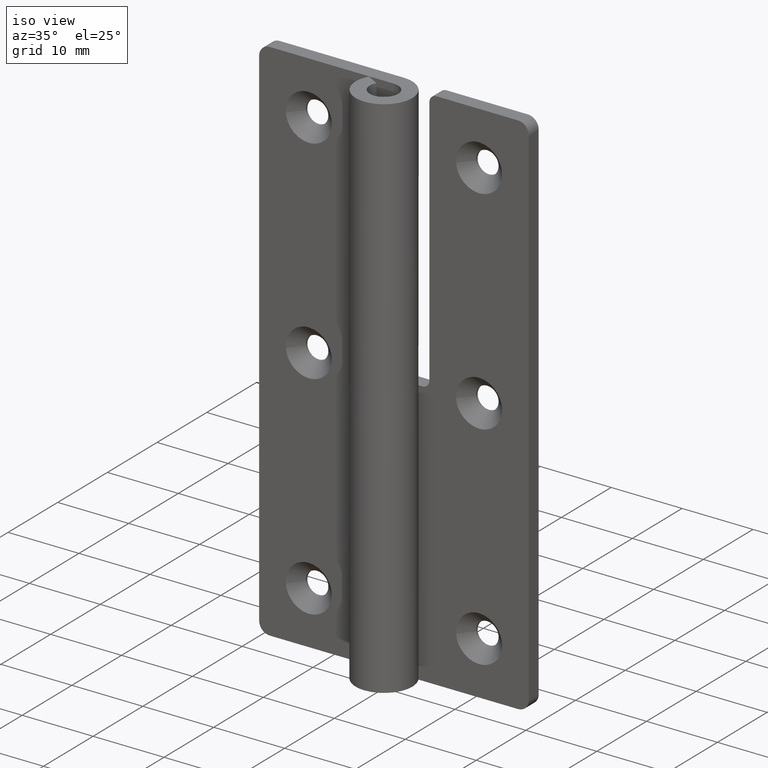
[diagram: clean part render]
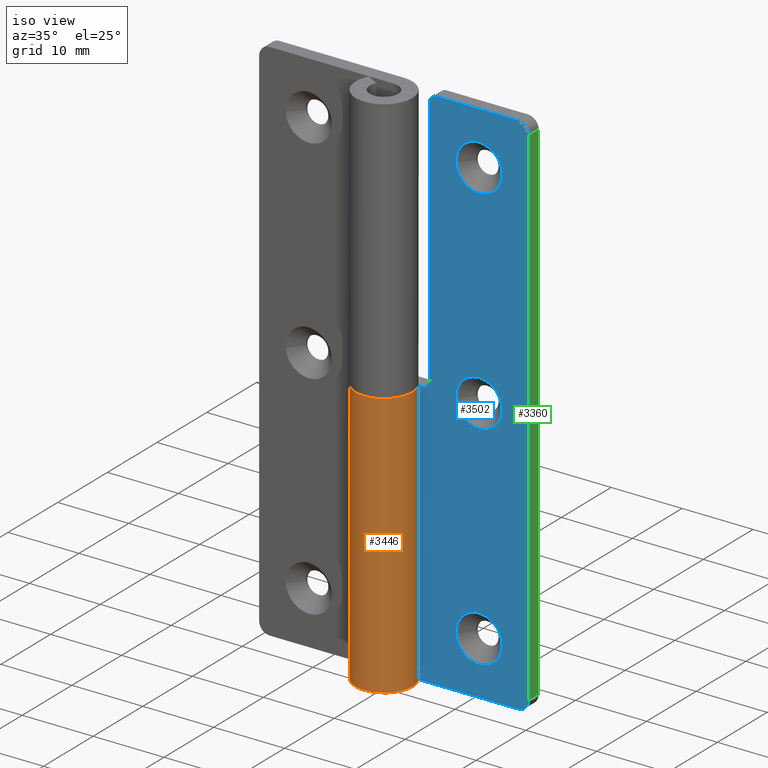
[diagram: same view with three faces highlighted in distinct colors, each labeled with its STEP entity id]
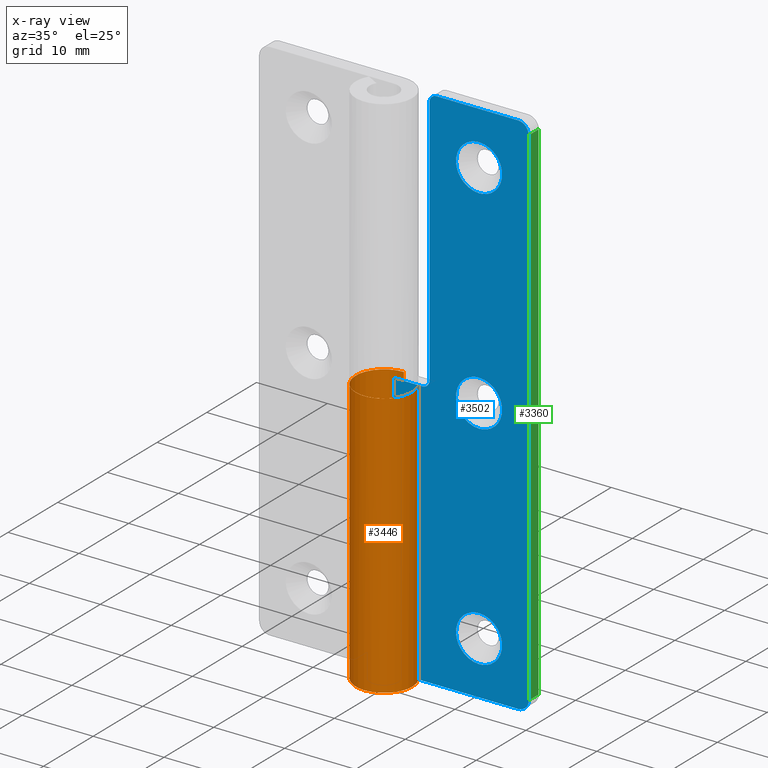
[diagram: x-ray of the same camera — body ghosted, the three highlighted faces saturated]
A machine part, iso view with three faces highlighted in distinct colors.
The next image is the same camera in x-ray (body ghosted, the three faces saturated) — at least one of them is partly hidden behind the body in this view.
Their STEP definitions:

[orange] entity #3446 — the highlighted face is a freeform B-spline surface patch.
#3031=CARTESIAN_POINT('',(0.0,4.0,37.500000000000000));
#3032=VERTEX_POINT('',#3031);
#3033=CARTESIAN_POINT('',(3.492491947020065,1.950000000000000,37.500000000000000));
#3034=VERTEX_POINT('',#3033);
#3035=CARTESIAN_POINT('',(0.0,4.0,37.500000000000000));
#3036=CARTESIAN_POINT('',(-3.057904543451451,4.000000000000001,37.500000000000000));
#3037=CARTESIAN_POINT('',(-3.859957943328416,1.049154266891131,37.500000000000000));
#3038=CARTESIAN_POINT('',(-4.662011343205381,-1.901691466217739,37.500000000000000));
#3039=CARTESIAN_POINT('',(-2.024845673131660,-3.449637662132068,37.500000000000000));
#3040=CARTESIAN_POINT('',(0.612319996942062,-4.997583858046397,37.500000000000000));
#3041=CARTESIAN_POINT('',(2.797770204447354,-2.858755303118232,37.500000000000000));
#3042=CARTESIAN_POINT('',(4.983220411952645,-0.719926748190068,37.500000000000000));
#3043=CARTESIAN_POINT('',(3.492491947020066,1.949999999999997,37.500000000000000));
#3051=(BOUNDED_CURVE()B_SPLINE_CURVE(2,(#3035,#3036,#3037,#3038,#3039,#3040,#3041,#3042,#3043),.UNSPECIFIED.,.F.,.U.)B_SPLINE_CURVE_WITH_KNOTS((3,2,2,2,3),(0.0,0.250000000000000,0.500000000000000,0.750000000000000,1.0),.UNSPECIFIED.)CURVE()GEOMETRIC_REPRESENTATION_ITEM()RATIONAL_B_SPLINE_CURVE((1.0,0.794445897063728,1.0,0.794445897063728,1.0,0.794445897063728,1.0,0.794445897063728,1.0))REPRESENTATION_ITEM(''));
#3052=EDGE_CURVE('',#3032,#3034,#3051,.T.);
#3305=CARTESIAN_POINT('',(3.492491947020065,1.950000000000000,0.0));
#3306=VERTEX_POINT('',#3305);
#3312=CARTESIAN_POINT('',(0.0,4.0,0.0));
#3313=VERTEX_POINT('',#3312);
#3314=CARTESIAN_POINT('',(3.492491947020065,1.949999999999999,0.0));
#3315=CARTESIAN_POINT('',(4.983220411952646,-0.719926748190065,0.0));
#3316=CARTESIAN_POINT('',(2.797770204447355,-2.858755303118231,0.0));
#3317=CARTESIAN_POINT('',(0.612319996942063,-4.997583858046395,0.0));
#3318=CARTESIAN_POINT('',(-2.024845673131658,-3.449637662132068,0.0));
#3319=CARTESIAN_POINT('',(-4.662011343205381,-1.901691466217742,0.0));
#3320=CARTESIAN_POINT('',(-3.859957943328416,1.049154266891129,0.0));
#3321=CARTESIAN_POINT('',(-3.057904543451453,4.0,0.0));
#3322=CARTESIAN_POINT('',(0.0,4.0,0.0));
#3330=(BOUNDED_CURVE()B_SPLINE_CURVE(2,(#3314,#3315,#3316,#3317,#3318,#3319,#3320,#3321,#3322),.UNSPECIFIED.,.F.,.U.)B_SPLINE_CURVE_WITH_KNOTS((3,2,2,2,3),(0.0,0.250000000000000,0.500000000000000,0.750000000000000,1.0),.UNSPECIFIED.)CURVE()GEOMETRIC_REPRESENTATION_ITEM()RATIONAL_B_SPLINE_CURVE((1.0,0.794445897063728,1.0,0.794445897063728,1.0,0.794445897063728,1.0,0.794445897063728,1.0))REPRESENTATION_ITEM(''));
#3331=EDGE_CURVE('',#3306,#3313,#3330,.T.);
#3367=CARTESIAN_POINT('',(3.492491947020065,1.950000000000000,0.0));
#3368=CARTESIAN_POINT('',(3.492491947020065,1.950000000000000,37.500000000000000));
#3369=QUASI_UNIFORM_CURVE('',1,(#3367,#3368),.UNSPECIFIED.,.F.,.U.);
#3370=EDGE_CURVE('',#3306,#3034,#3369,.T.);
#3414=CARTESIAN_POINT('',(3.410560657416367,2.089994258863795,-0.937500000000001));
#3415=CARTESIAN_POINT('',(3.410560657416367,2.089994258863795,38.460937500000007));
#3416=CARTESIAN_POINT('',(5.991488624861849,-2.121697399169993,-0.937500000000002));
#3417=CARTESIAN_POINT('',(5.991488624861849,-2.121697399169993,38.460937500000000));
#3418=CARTESIAN_POINT('',(1.335227436935084,-3.770565964368712,-0.937500000000001));
#3419=CARTESIAN_POINT('',(1.335227436935084,-3.770565964368712,38.460937500000007));
#3420=CARTESIAN_POINT('',(-3.321033750991682,-5.419434529567431,-0.937500000000002));
#3421=CARTESIAN_POINT('',(-3.321033750991682,-5.419434529567431,38.460937500000000));
#3422=CARTESIAN_POINT('',(-3.965779445495240,-0.522104768880208,-0.937500000000001));
#3423=CARTESIAN_POINT('',(-3.965779445495240,-0.522104768880208,38.460937500000007));
#3424=CARTESIAN_POINT('',(-4.610525139998799,4.375224991807015,-0.937500000000002));
#3425=CARTESIAN_POINT('',(-4.610525139998799,4.375224991807015,38.460937500000000));
#3426=CARTESIAN_POINT('',(0.313836382911377,3.987669334932510,-0.937500000000001));
#3427=CARTESIAN_POINT('',(0.313836382911377,3.987669334932510,38.460937500000007));
#3435=(BOUNDED_SURFACE()B_SPLINE_SURFACE(1,2,((#3414,#3416,#3418,#3420,#3422,#3424,#3426),(#3415,#3417,#3419,#3421,#3423,#3425,#3427)),.UNSPECIFIED.,.F.,.F.,.U.)B_SPLINE_SURFACE_WITH_KNOTS((2,2),(3,2,2,3),(0.0,39.398437500000007),(0.0,7.631608523170559,15.263217046341120,22.894825569511681),.UNSPECIFIED.)GEOMETRIC_REPRESENTATION_ITEM()RATIONAL_B_SPLINE_SURFACE(((1.0,0.629320391049838,1.0,0.629320391049838,1.0,0.629320391049838,1.0),(1.0,0.629320391049838,1.0,0.629320391049838,1.0,0.629320391049838,1.0)))REPRESENTATION_ITEM('')SURFACE());
#3436=ORIENTED_EDGE('',*,*,#3052,.F.);
#3437=CARTESIAN_POINT('',(0.0,4.0,0.0));
#3438=CARTESIAN_POINT('',(0.0,4.0,37.500000000000000));
#3439=QUASI_UNIFORM_CURVE('',1,(#3437,#3438),.UNSPECIFIED.,.F.,.U.);
#3440=EDGE_CURVE('',#3313,#3032,#3439,.T.);
#3441=ORIENTED_EDGE('',*,*,#3440,.F.);
#3442=ORIENTED_EDGE('',*,*,#3331,.F.);
#3443=ORIENTED_EDGE('',*,*,#3370,.T.);
#3444=EDGE_LOOP('',(#3436,#3441,#3442,#3443));
#3445=FACE_OUTER_BOUND('',#3444,.T.);
#3446=ADVANCED_FACE('',(#3445),#3435,.T.);

[blue] entity #3502 — the highlighted face is a freeform B-spline surface patch.
#2165=CARTESIAN_POINT('',(15.239981334655660,1.999999999941699,67.754992061566440));
#2166=VERTEX_POINT('',#2165);
#2172=CARTESIAN_POINT('',(12.0,2.0,70.750000000000014));
#2173=VERTEX_POINT('',#2172);
#2174=CARTESIAN_POINT('',(12.0,2.0,70.750000000000014));
#2175=CARTESIAN_POINT('',(15.004269097058854,2.000000000000000,70.750000000000028));
#2176=CARTESIAN_POINT('',(15.239981334655658,1.999999999941699,67.754992061566440));
#2184=(BOUNDED_CURVE()B_SPLINE_CURVE(2,(#2174,#2175,#2176),.UNSPECIFIED.,.F.,.U.)B_SPLINE_CURVE_WITH_KNOTS((3,3),(0.0,0.236331300585534),.UNSPECIFIED.)CURVE()GEOMETRIC_REPRESENTATION_ITEM()RATIONAL_B_SPLINE_CURVE((1.0,0.723120658660533,0.969723356073245))REPRESENTATION_ITEM(''));
#2185=EDGE_CURVE('',#2173,#2166,#2184,.T.);
#2187=CARTESIAN_POINT('',(8.760018665344340,1.999999999941699,67.245007938433574));
#2188=VERTEX_POINT('',#2187);
#2189=CARTESIAN_POINT('',(8.760018665344340,1.999999999941699,67.245007938433574));
#2190=CARTESIAN_POINT('',(8.750000000000000,2.000000000000000,67.372307151776639));
#2191=CARTESIAN_POINT('',(8.750000000000000,2.0,67.500000000000000));
#2192=CARTESIAN_POINT('',(8.750000000000000,2.0,70.750000000000014));
#2193=CARTESIAN_POINT('',(12.0,2.0,70.750000000000014));
#2201=(BOUNDED_CURVE()B_SPLINE_CURVE(2,(#2189,#2190,#2191,#2192,#2193),.UNSPECIFIED.,.F.,.U.)B_SPLINE_CURVE_WITH_KNOTS((3,2,3),(0.736331300585535,0.750000000000000,1.0),.UNSPECIFIED.)CURVE()GEOMETRIC_REPRESENTATION_ITEM()RATIONAL_B_SPLINE_CURVE((0.969723356073246,0.983986122526015,1.0,0.707106781186547,1.0))REPRESENTATION_ITEM(''));
#2202=EDGE_CURVE('',#2188,#2173,#2201,.T.);
#2239=CARTESIAN_POINT('',(12.0,2.0,64.250000000000000));
#2240=VERTEX_POINT('',#2239);
#2241=CARTESIAN_POINT('',(12.0,2.0,64.250000000000000));
#2242=CARTESIAN_POINT('',(8.995730902941142,2.000000000000000,64.250000000000000));
#2243=CARTESIAN_POINT('',(8.760018665344340,1.999999999941700,67.245007938433574));
#2251=(BOUNDED_CURVE()B_SPLINE_CURVE(2,(#2241,#2242,#2243),.UNSPECIFIED.,.F.,.U.)B_SPLINE_CURVE_WITH_KNOTS((3,3),(0.500000000000000,0.736331300585535),.UNSPECIFIED.)CURVE()GEOMETRIC_REPRESENTATION_ITEM()RATIONAL_B_SPLINE_CURVE((1.0,0.723120658660532,0.969723356073246))REPRESENTATION_ITEM(''));
#2252=EDGE_CURVE('',#2240,#2188,#2251,.T.);
#2254=CARTESIAN_POINT('',(15.239981334655660,1.999999999941700,67.754992061566440));
#2255=CARTESIAN_POINT('',(15.250000000000004,2.000000000000000,67.627692848223347));
#2256=CARTESIAN_POINT('',(15.250000000000000,2.0,67.500000000000000));
#2257=CARTESIAN_POINT('',(15.250000000000002,2.0,64.250000000000014));
#2258=CARTESIAN_POINT('',(12.0,2.0,64.250000000000000));
#2266=(BOUNDED_CURVE()B_SPLINE_CURVE(2,(#2254,#2255,#2256,#2257,#2258),.UNSPECIFIED.,.F.,.U.)B_SPLINE_CURVE_WITH_KNOTS((3,2,3),(0.236331300585534,0.250000000000000,0.500000000000000),.UNSPECIFIED.)CURVE()GEOMETRIC_REPRESENTATION_ITEM()RATIONAL_B_SPLINE_CURVE((0.969723356073245,0.983986122526014,1.0,0.707106781186547,1.0))REPRESENTATION_ITEM(''));
#2267=EDGE_CURVE('',#2166,#2240,#2266,.T.);
#2497=CARTESIAN_POINT('',(15.239981334655660,1.999999999941699,37.754992061566433));
#2498=VERTEX_POINT('',#2497);
#2504=CARTESIAN_POINT('',(12.0,2.0,40.750000000000000));
#2505=VERTEX_POINT('',#2504);
#2506=CARTESIAN_POINT('',(12.0,2.0,40.750000000000000));
#2507=CARTESIAN_POINT('',(15.004269097058856,2.0,40.750000000000000));
#2508=CARTESIAN_POINT('',(15.239981334655656,1.999999999941699,37.754992061566426));
#2516=(BOUNDED_CURVE()B_SPLINE_CURVE(2,(#2506,#2507,#2508),.UNSPECIFIED.,.F.,.U.)B_SPLINE_CURVE_WITH_KNOTS((3,3),(0.0,0.236331300585534),.UNSPECIFIED.)CURVE()GEOMETRIC_REPRESENTATION_ITEM()RATIONAL_B_SPLINE_CURVE((1.0,0.723120658660533,0.969723356073245))REPRESENTATION_ITEM(''));
#2517=EDGE_CURVE('',#2505,#2498,#2516,.T.);
#2519=CARTESIAN_POINT('',(8.760018665344340,1.999999999941700,37.245007938433567));
#2520=VERTEX_POINT('',#2519);
#2521=CARTESIAN_POINT('',(8.760018665344340,1.999999999941699,37.245007938433581));
#2522=CARTESIAN_POINT('',(8.750000000000002,2.000000000000000,37.372307151776646));
#2523=CARTESIAN_POINT('',(8.750000000000000,2.0,37.500000000000000));
#2524=CARTESIAN_POINT('',(8.750000000000000,2.0,40.750000000000000));
#2525=CARTESIAN_POINT('',(12.0,2.0,40.750000000000000));
#2533=(BOUNDED_CURVE()B_SPLINE_CURVE(2,(#2521,#2522,#2523,#2524,#2525),.UNSPECIFIED.,.F.,.U.)B_SPLINE_CURVE_WITH_KNOTS((3,2,3),(0.736331300585534,0.750000000000000,1.0),.UNSPECIFIED.)CURVE()GEOMETRIC_REPRESENTATION_ITEM()RATIONAL_B_SPLINE_CURVE((0.969723356073244,0.983986122526014,1.0,0.707106781186547,1.0))REPRESENTATION_ITEM(''));
#2534=EDGE_CURVE('',#2520,#2505,#2533,.T.);
#2571=CARTESIAN_POINT('',(12.0,2.0,34.249999999999993));
#2572=VERTEX_POINT('',#2571);
#2573=CARTESIAN_POINT('',(12.0,2.0,34.249999999999993));
#2574=CARTESIAN_POINT('',(8.995730902941142,2.000000000000000,34.249999999999993));
#2575=CARTESIAN_POINT('',(8.760018665344340,1.999999999941700,37.245007938433581));
#2583=(BOUNDED_CURVE()B_SPLINE_CURVE(2,(#2573,#2574,#2575),.UNSPECIFIED.,.F.,.U.)B_SPLINE_CURVE_WITH_KNOTS((3,3),(0.500000000000000,0.736331300585535),.UNSPECIFIED.)CURVE()GEOMETRIC_REPRESENTATION_ITEM()RATIONAL_B_SPLINE_CURVE((1.0,0.723120658660532,0.969723356073246))REPRESENTATION_ITEM(''));
#2584=EDGE_CURVE('',#2572,#2520,#2583,.T.);
#2586=CARTESIAN_POINT('',(15.239981334655656,1.999999999941699,37.754992061566426));
#2587=CARTESIAN_POINT('',(15.250000000000000,2.0,37.627692848223361));
#2588=CARTESIAN_POINT('',(15.250000000000000,2.0,37.500000000000000));
#2589=CARTESIAN_POINT('',(15.250000000000002,2.0,34.250000000000000));
#2590=CARTESIAN_POINT('',(12.0,2.0,34.249999999999993));
#2598=(BOUNDED_CURVE()B_SPLINE_CURVE(2,(#2586,#2587,#2588,#2589,#2590),.UNSPECIFIED.,.F.,.U.)B_SPLINE_CURVE_WITH_KNOTS((3,2,3),(0.236331300585534,0.250000000000000,0.500000000000000),.UNSPECIFIED.)CURVE()GEOMETRIC_REPRESENTATION_ITEM()RATIONAL_B_SPLINE_CURVE((0.969723356073245,0.983986122526014,1.0,0.707106781186547,1.0))REPRESENTATION_ITEM(''));
#2599=EDGE_CURVE('',#2498,#2572,#2598,.T.);
#2829=CARTESIAN_POINT('',(15.239981334655660,1.999999999941699,7.754992061566426));
#2830=VERTEX_POINT('',#2829);
#2836=CARTESIAN_POINT('',(12.0,2.0,10.750000000000000));
#2837=VERTEX_POINT('',#2836);
#2838=CARTESIAN_POINT('',(12.0,2.0,10.750000000000000));
#2839=CARTESIAN_POINT('',(15.004269097058856,2.0,10.750000000000000));
#2840=CARTESIAN_POINT('',(15.239981334655656,1.999999999941699,7.754992061566426));
#2848=(BOUNDED_CURVE()B_SPLINE_CURVE(2,(#2838,#2839,#2840),.UNSPECIFIED.,.F.,.U.)B_SPLINE_CURVE_WITH_KNOTS((3,3),(0.0,0.236331300585534),.UNSPECIFIED.)CURVE()GEOMETRIC_REPRESENTATION_ITEM()RATIONAL_B_SPLINE_CURVE((1.0,0.723120658660533,0.969723356073245))REPRESENTATION_ITEM(''));
#2849=EDGE_CURVE('',#2837,#2830,#2848,.T.);
#2851=CARTESIAN_POINT('',(8.760018665344340,1.999999999941699,7.245007938433573));
#2852=VERTEX_POINT('',#2851);
#2853=CARTESIAN_POINT('',(8.760018665344340,1.999999999941700,7.245007938433573));
#2854=CARTESIAN_POINT('',(8.750000000000002,2.000000000000000,7.372307151776647));
#2855=CARTESIAN_POINT('',(8.750000000000000,2.0,7.500000000000000));
#2856=CARTESIAN_POINT('',(8.750000000000000,2.0,10.750000000000000));
#2857=CARTESIAN_POINT('',(12.0,2.0,10.750000000000000));
#2865=(BOUNDED_CURVE()B_SPLINE_CURVE(2,(#2853,#2854,#2855,#2856,#2857),.UNSPECIFIED.,.F.,.U.)B_SPLINE_CURVE_WITH_KNOTS((3,2,3),(0.736331300585534,0.750000000000000,1.0),.UNSPECIFIED.)CURVE()GEOMETRIC_REPRESENTATION_ITEM()RATIONAL_B_SPLINE_CURVE((0.969723356073245,0.983986122526014,1.0,0.707106781186547,1.0))REPRESENTATION_ITEM(''));
#2866=EDGE_CURVE('',#2852,#2837,#2865,.T.);
#2903=CARTESIAN_POINT('',(12.0,2.0,4.250000000000000));
#2904=VERTEX_POINT('',#2903);
#2905=CARTESIAN_POINT('',(12.0,2.0,4.250000000000000));
#2906=CARTESIAN_POINT('',(8.995730902941142,2.000000000000000,4.249999999999999));
#2907=CARTESIAN_POINT('',(8.760018665344340,1.999999999941700,7.245007938433573));
#2915=(BOUNDED_CURVE()B_SPLINE_CURVE(2,(#2905,#2906,#2907),.UNSPECIFIED.,.F.,.U.)B_SPLINE_CURVE_WITH_KNOTS((3,3),(0.500000000000000,0.736331300585535),.UNSPECIFIED.)CURVE()GEOMETRIC_REPRESENTATION_ITEM()RATIONAL_B_SPLINE_CURVE((1.0,0.723120658660532,0.969723356073246))REPRESENTATION_ITEM(''));
#2916=EDGE_CURVE('',#2904,#2852,#2915,.T.);
#2918=CARTESIAN_POINT('',(15.239981334655656,1.999999999941699,7.754992061566426));
#2919=CARTESIAN_POINT('',(15.250000000000000,2.0,7.627692848223353));
#2920=CARTESIAN_POINT('',(15.250000000000000,2.0,7.500000000000000));
#2921=CARTESIAN_POINT('',(15.250000000000002,2.0,4.250000000000000));
#2922=CARTESIAN_POINT('',(12.0,2.0,4.250000000000000));
#2930=(BOUNDED_CURVE()B_SPLINE_CURVE(2,(#2918,#2919,#2920,#2921,#2922),.UNSPECIFIED.,.F.,.U.)B_SPLINE_CURVE_WITH_KNOTS((3,2,3),(0.236331300585534,0.250000000000000,0.500000000000000),.UNSPECIFIED.)CURVE()GEOMETRIC_REPRESENTATION_ITEM()RATIONAL_B_SPLINE_CURVE((0.969723356073245,0.983986122526014,1.0,0.707106781186547,1.0))REPRESENTATION_ITEM(''));
#2931=EDGE_CURVE('',#2830,#2904,#2930,.T.);
#2951=CARTESIAN_POINT('',(6.0,2.0,75.0));
#2952=VERTEX_POINT('',#2951);
#2953=CARTESIAN_POINT('',(5.0,2.0,74.0));
#2954=VERTEX_POINT('',#2953);
#2955=CARTESIAN_POINT('',(6.0,2.0,75.0));
#2956=CARTESIAN_POINT('',(5.000000000000001,2.000000000000000,75.000000000000014));
#2957=CARTESIAN_POINT('',(5.0,2.0,74.0));
#2965=(BOUNDED_CURVE()B_SPLINE_CURVE(2,(#2955,#2956,#2957),.UNSPECIFIED.,.F.,.U.)CURVE()GEOMETRIC_REPRESENTATION_ITEM()QUASI_UNIFORM_CURVE()RATIONAL_B_SPLINE_CURVE((1.0,0.707106781186548,1.0))REPRESENTATION_ITEM(''));
#2966=EDGE_CURVE('',#2952,#2954,#2965,.T.);
#3011=CARTESIAN_POINT('',(5.0,2.0,38.500000000000000));
#3012=VERTEX_POINT('',#3011);
#3018=CARTESIAN_POINT('',(5.0,2.0,38.500000000000000));
#3019=CARTESIAN_POINT('',(5.0,2.0,74.0));
#3020=QUASI_UNIFORM_CURVE('',1,(#3018,#3019),.UNSPECIFIED.,.F.,.U.);
#3021=EDGE_CURVE('',#3012,#2954,#3020,.T.);
#3061=CARTESIAN_POINT('',(0.0,2.0,37.500000000000000));
#3062=VERTEX_POINT('',#3061);
#3082=CARTESIAN_POINT('',(4.0,2.0,37.500000000000000));
#3083=VERTEX_POINT('',#3082);
#3084=CARTESIAN_POINT('',(0.0,2.0,37.500000000000000));
#3085=CARTESIAN_POINT('',(4.0,2.0,37.500000000000000));
#3086=QUASI_UNIFORM_CURVE('',1,(#3084,#3085),.UNSPECIFIED.,.F.,.U.);
#3087=EDGE_CURVE('',#3062,#3083,#3086,.T.);
#3133=CARTESIAN_POINT('',(5.0,2.0,38.500000000000000));
#3134=CARTESIAN_POINT('',(5.000000000000001,2.000000000000000,37.499999999999993));
#3135=CARTESIAN_POINT('',(4.0,2.0,37.500000000000000));
#3143=(BOUNDED_CURVE()B_SPLINE_CURVE(2,(#3133,#3134,#3135),.UNSPECIFIED.,.F.,.U.)CURVE()GEOMETRIC_REPRESENTATION_ITEM()QUASI_UNIFORM_CURVE()RATIONAL_B_SPLINE_CURVE((1.0,0.707106781186548,1.0))REPRESENTATION_ITEM(''));
#3144=EDGE_CURVE('',#3012,#3083,#3143,.T.);
#3163=CARTESIAN_POINT('',(19.0,2.0,73.500000000000000));
#3164=VERTEX_POINT('',#3163);
#3165=CARTESIAN_POINT('',(17.500000000000000,2.0,75.0));
#3166=VERTEX_POINT('',#3165);
#3167=CARTESIAN_POINT('',(19.0,2.0,73.500000000000000));
#3168=CARTESIAN_POINT('',(19.000000000000011,2.000000000000000,75.000000000000014));
#3169=CARTESIAN_POINT('',(17.500000000000000,2.0,75.0));
#3177=(BOUNDED_CURVE()B_SPLINE_CURVE(2,(#3167,#3168,#3169),.UNSPECIFIED.,.F.,.U.)CURVE()GEOMETRIC_REPRESENTATION_ITEM()QUASI_UNIFORM_CURVE()RATIONAL_B_SPLINE_CURVE((1.0,0.707106781186548,1.0))REPRESENTATION_ITEM(''));
#3178=EDGE_CURVE('',#3164,#3166,#3177,.T.);
#3224=CARTESIAN_POINT('',(17.500000000000000,2.0,0.0));
#3225=VERTEX_POINT('',#3224);
#3226=CARTESIAN_POINT('',(19.0,2.0,1.500000000000100));
#3227=VERTEX_POINT('',#3226);
#3228=CARTESIAN_POINT('',(17.500000000000000,2.0,0.0));
#3229=CARTESIAN_POINT('',(19.000000000000011,2.000000000000000,9.996344E-014));
#3230=CARTESIAN_POINT('',(19.0,2.0,1.500000000000100));
#3238=(BOUNDED_CURVE()B_SPLINE_CURVE(2,(#3228,#3229,#3230),.UNSPECIFIED.,.F.,.U.)CURVE()GEOMETRIC_REPRESENTATION_ITEM()QUASI_UNIFORM_CURVE()RATIONAL_B_SPLINE_CURVE((1.0,0.707106781186548,1.0))REPRESENTATION_ITEM(''));
#3239=EDGE_CURVE('',#3225,#3227,#3238,.T.);
#3277=CARTESIAN_POINT('',(0.0,2.0,0.0));
#3278=VERTEX_POINT('',#3277);
#3279=CARTESIAN_POINT('',(17.500000000000000,2.0,0.0));
#3280=CARTESIAN_POINT('',(0.0,2.0,0.0));
#3281=QUASI_UNIFORM_CURVE('',1,(#3279,#3280),.UNSPECIFIED.,.F.,.U.);
#3282=EDGE_CURVE('',#3225,#3278,#3281,.T.);
#3352=CARTESIAN_POINT('',(19.0,2.0,1.500000000000100));
#3353=CARTESIAN_POINT('',(19.0,2.0,73.500000000000000));
#3354=QUASI_UNIFORM_CURVE('',1,(#3352,#3353),.UNSPECIFIED.,.F.,.U.);
#3355=EDGE_CURVE('',#3227,#3164,#3354,.T.);
#3403=CARTESIAN_POINT('',(0.0,2.0,0.0));
#3404=CARTESIAN_POINT('',(0.0,2.0,37.500000000000000));
#3405=QUASI_UNIFORM_CURVE('',1,(#3403,#3404),.UNSPECIFIED.,.F.,.U.);
#3406=EDGE_CURVE('',#3278,#3062,#3405,.T.);
#3453=CARTESIAN_POINT('',(17.500000000000000,2.0,75.0));
#3454=CARTESIAN_POINT('',(6.0,2.0,75.0));
#3455=QUASI_UNIFORM_CURVE('',1,(#3453,#3454),.UNSPECIFIED.,.F.,.U.);
#3456=EDGE_CURVE('',#3166,#2952,#3455,.T.);
#3467=CARTESIAN_POINT('',(-0.949049963174314,2.0,-3.746249854635448));
#3468=CARTESIAN_POINT('',(-0.949049963174314,2.0,78.746251866292212));
#3469=CARTESIAN_POINT('',(19.949050472794021,2.0,-3.746249854635448));
#3470=CARTESIAN_POINT('',(19.949050472794021,2.0,78.746251866292212));
#3471=B_SPLINE_SURFACE_WITH_KNOTS('',1,1,((#3467,#3469),(#3468,#3470)),.UNSPECIFIED.,.F.,.F.,.U.,(2,2),(2,2),(0.0,82.492501720927663),(0.0,20.898100435968342),.UNSPECIFIED.);
#3472=ORIENTED_EDGE('',*,*,#2966,.T.);
#3473=ORIENTED_EDGE('',*,*,#3021,.F.);
#3474=ORIENTED_EDGE('',*,*,#3144,.T.);
#3475=ORIENTED_EDGE('',*,*,#3087,.F.);
#3476=ORIENTED_EDGE('',*,*,#3406,.F.);
#3477=ORIENTED_EDGE('',*,*,#3282,.F.);
#3478=ORIENTED_EDGE('',*,*,#3239,.T.);
#3479=ORIENTED_EDGE('',*,*,#3355,.T.);
#3480=ORIENTED_EDGE('',*,*,#3178,.T.);
#3481=ORIENTED_EDGE('',*,*,#3456,.T.);
#3482=EDGE_LOOP('',(#3472,#3473,#3474,#3475,#3476,#3477,#3478,#3479,#3480,#3481));
#3483=FACE_OUTER_BOUND('',#3482,.T.);
#3484=ORIENTED_EDGE('',*,*,#2916,.T.);
#3485=ORIENTED_EDGE('',*,*,#2866,.T.);
#3486=ORIENTED_EDGE('',*,*,#2849,.T.);
#3487=ORIENTED_EDGE('',*,*,#2931,.T.);
#3488=EDGE_LOOP('',(#3484,#3485,#3486,#3487));
#3489=FACE_BOUND('',#3488,.T.);
#3490=ORIENTED_EDGE('',*,*,#2584,.T.);
#3491=ORIENTED_EDGE('',*,*,#2534,.T.);
#3492=ORIENTED_EDGE('',*,*,#2517,.T.);
#3493=ORIENTED_EDGE('',*,*,#2599,.T.);
#3494=EDGE_LOOP('',(#3490,#3491,#3492,#3493));
#3495=FACE_BOUND('',#3494,.T.);
#3496=ORIENTED_EDGE('',*,*,#2252,.T.);
#3497=ORIENTED_EDGE('',*,*,#2202,.T.);
#3498=ORIENTED_EDGE('',*,*,#2185,.T.);
#3499=ORIENTED_EDGE('',*,*,#2267,.T.);
#3500=EDGE_LOOP('',(#3496,#3497,#3498,#3499));
#3501=FACE_BOUND('',#3500,.T.);
#3502=ADVANCED_FACE('',(#3483,#3489,#3495,#3501),#3471,.F.);

[green] entity #3360 — the highlighted face is a freeform B-spline surface patch.
#3163=CARTESIAN_POINT('',(19.0,2.0,73.500000000000000));
#3164=VERTEX_POINT('',#3163);
#3180=CARTESIAN_POINT('',(19.0,4.0,73.500000000000000));
#3181=VERTEX_POINT('',#3180);
#3182=CARTESIAN_POINT('',(19.0,4.0,73.500000000000000));
#3183=CARTESIAN_POINT('',(19.0,2.0,73.500000000000000));
#3184=QUASI_UNIFORM_CURVE('',1,(#3182,#3183),.UNSPECIFIED.,.F.,.U.);
#3185=EDGE_CURVE('',#3181,#3164,#3184,.T.);
#3226=CARTESIAN_POINT('',(19.0,2.0,1.500000000000100));
#3227=VERTEX_POINT('',#3226);
#3248=CARTESIAN_POINT('',(19.0,4.0,1.500000000000100));
#3249=VERTEX_POINT('',#3248);
#3263=CARTESIAN_POINT('',(19.0,4.0,1.500000000000100));
#3264=CARTESIAN_POINT('',(19.0,2.0,1.500000000000100));
#3265=QUASI_UNIFORM_CURVE('',1,(#3263,#3264),.UNSPECIFIED.,.F.,.U.);
#3266=EDGE_CURVE('',#3249,#3227,#3265,.T.);
#3341=CARTESIAN_POINT('',(19.0,1.900100003876388,-2.096399860449925));
#3342=CARTESIAN_POINT('',(19.0,1.900100003876388,77.096401791640503));
#3343=CARTESIAN_POINT('',(19.0,4.099900049767792,-2.096399860449925));
#3344=CARTESIAN_POINT('',(19.0,4.099900049767792,77.096401791640503));
#3345=B_SPLINE_SURFACE_WITH_KNOTS('',1,1,((#3341,#3343),(#3342,#3344)),.UNSPECIFIED.,.F.,.F.,.U.,(2,2),(2,2),(0.0,79.192801652090424),(0.0,2.199800045891403),.UNSPECIFIED.);
#3346=CARTESIAN_POINT('',(19.0,4.0,1.500000000000100));
#3347=CARTESIAN_POINT('',(19.0,4.0,73.500000000000000));
#3348=QUASI_UNIFORM_CURVE('',1,(#3346,#3347),.UNSPECIFIED.,.F.,.U.);
#3349=EDGE_CURVE('',#3249,#3181,#3348,.T.);
#3350=ORIENTED_EDGE('',*,*,#3349,.T.);
#3351=ORIENTED_EDGE('',*,*,#3185,.T.);
#3352=CARTESIAN_POINT('',(19.0,2.0,1.500000000000100));
#3353=CARTESIAN_POINT('',(19.0,2.0,73.500000000000000));
#3354=QUASI_UNIFORM_CURVE('',1,(#3352,#3353),.UNSPECIFIED.,.F.,.U.);
#3355=EDGE_CURVE('',#3227,#3164,#3354,.T.);
#3356=ORIENTED_EDGE('',*,*,#3355,.F.);
#3357=ORIENTED_EDGE('',*,*,#3266,.F.);
#3358=EDGE_LOOP('',(#3350,#3351,#3356,#3357));
#3359=FACE_OUTER_BOUND('',#3358,.T.);
#3360=ADVANCED_FACE('',(#3359),#3345,.F.);